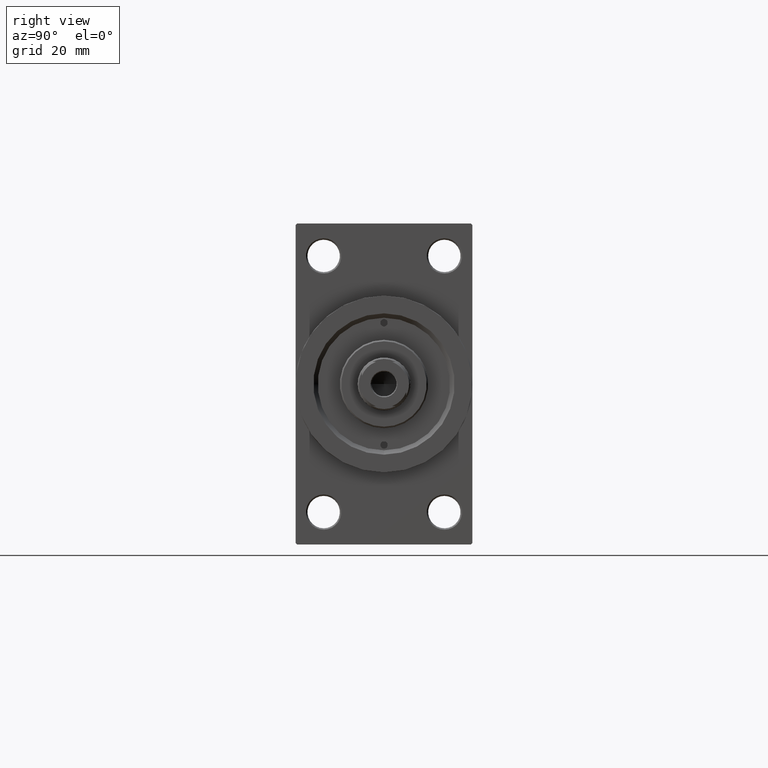
[diagram: clean part render]
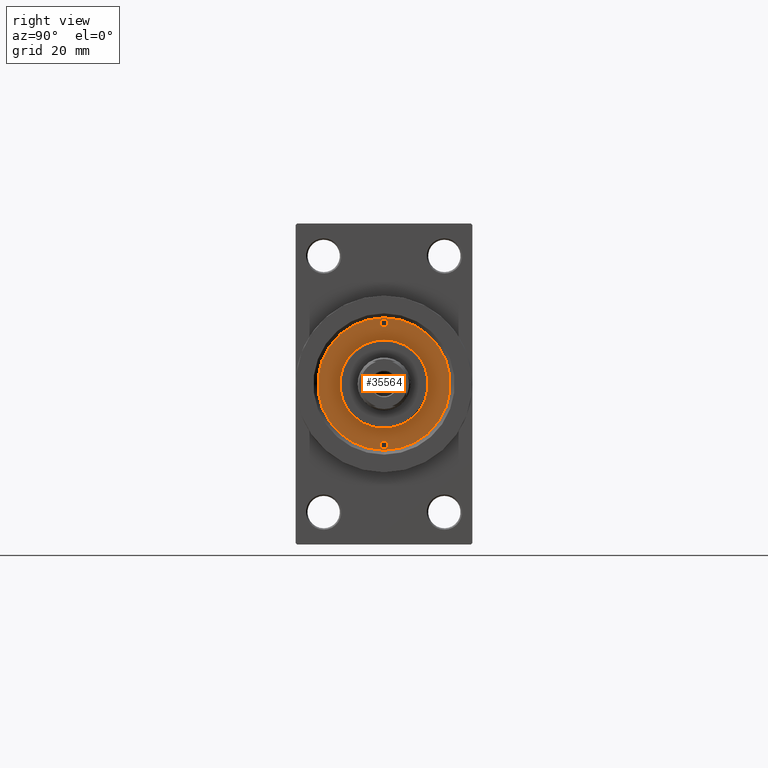
[diagram: same view with one face highlighted and labeled with its STEP entity id]
A machine part, right view. The second image highlights one B-rep face of the part: STEP entity #35564.
In plain terms, the highlighted planar face has unit normal (1, -0, -0).
Its self-contained STEP definition (entity closure, byte-faithful):
#2236 = VERTEX_POINT ( 'NONE', #22569 ) ;
#2845 = DIRECTION ( 'NONE',  ( 1.000000000000000000, 0.000000000000000000, -0.000000000000000000 ) ) ;
#2995 = CARTESIAN_POINT ( 'NONE',  ( -15.00000000000000000, 0.000000000000000000, 43.25999999999999801 ) ) ;
#3075 = FACE_BOUND ( 'NONE', #30760, .T. ) ;
#3416 = DIRECTION ( 'NONE',  ( -0.000000000000000000, -0.000000000000000000, 1.000000000000000000 ) ) ;
#3580 = AXIS2_PLACEMENT_3D ( 'NONE', #26160, #3416, #18030 ) ;
#4731 = DIRECTION ( 'NONE',  ( 1.000000000000000000, 0.000000000000000000, 0.000000000000000000 ) ) ;
#5623 = DIRECTION ( 'NONE',  ( 1.000000000000000000, 0.000000000000000000, 0.000000000000000000 ) ) ;
#5727 = CARTESIAN_POINT ( 'NONE',  ( 20.75000000000000000, 0.000000000000000000, 43.25999999999999801 ) ) ;
#6507 = VERTEX_POINT ( 'NONE', #19788 ) ;
#6894 = FACE_BOUND ( 'NONE', #32508, .T. ) ;
#8718 = CARTESIAN_POINT ( 'NONE',  ( -20.75000000000000000, 0.000000000000000000, 43.25999999999999801 ) ) ;
#9335 = AXIS2_PLACEMENT_3D ( 'NONE', #32788, #40249, #2845 ) ;
#9452 = VERTEX_POINT ( 'NONE', #19648 ) ;
#10704 = CARTESIAN_POINT ( 'NONE',  ( -20.75000000000000000, 0.000000000000000000, 43.25999999999999801 ) ) ;
#11320 = AXIS2_PLACEMENT_3D ( 'NONE', #10704, #28017, #25333 ) ;
#11505 = EDGE_CURVE ( 'NONE', #20924, #2236, #14223, .T. ) ;
#12370 = CIRCLE ( 'NONE', #39238, 22.50000000000000355 ) ;
#12980 = EDGE_CURVE ( 'NONE', #36946, #22057, #15823, .T. ) ;
#13095 = EDGE_CURVE ( 'NONE', #22057, #36946, #14283, .T. ) ;
#14223 = CIRCLE ( 'NONE', #41056, 1.249999999999997558 ) ;
#14283 = CIRCLE ( 'NONE', #3580, 1.249999999999997558 ) ;
#15106 = CARTESIAN_POINT ( 'NONE',  ( 22.00000000000000000, 0.000000000000000000, 43.25999999999999801 ) ) ;
#15552 = CARTESIAN_POINT ( 'NONE',  ( -19.50000000000000355, 0.000000000000000000, 43.25999999999999801 ) ) ;
#15821 = VERTEX_POINT ( 'NONE', #25052 ) ;
#15823 = CIRCLE ( 'NONE', #42684, 1.249999999999997558 ) ;
#15899 = EDGE_CURVE ( 'NONE', #15821, #21932, #34330, .T. ) ;
#16023 = DIRECTION ( 'NONE',  ( -0.000000000000000000, -0.000000000000000000, 1.000000000000000000 ) ) ;
#18030 = DIRECTION ( 'NONE',  ( 1.000000000000000000, 0.000000000000000000, 0.000000000000000000 ) ) ;
#18671 = AXIS2_PLACEMENT_3D ( 'NONE', #44347, #37617, #4731 ) ;
#19648 = CARTESIAN_POINT ( 'NONE',  ( 22.50000000000000355, 2.755455298081545172E-15, 43.25999999999999801 ) ) ;
#19788 = CARTESIAN_POINT ( 'NONE',  ( -22.50000000000000355, 0.000000000000000000, 43.25999999999999801 ) ) ;
#19849 = CARTESIAN_POINT ( 'NONE',  ( 0.000000000000000000, 0.000000000000000000, 43.25999999999999801 ) ) ;
#20163 = EDGE_CURVE ( 'NONE', #2236, #20924, #45081, .T. ) ;
#20523 = AXIS2_PLACEMENT_3D ( 'NONE', #29597, #29127, #36115 ) ;
#20924 = VERTEX_POINT ( 'NONE', #15552 ) ;
#21516 = PLANE ( 'NONE',  #9335 ) ;
#21816 = ORIENTED_EDGE ( 'NONE', *, *, #31976, .T. ) ;
#21932 = VERTEX_POINT ( 'NONE', #2995 ) ;
#22057 = VERTEX_POINT ( 'NONE', #15106 ) ;
#22569 = CARTESIAN_POINT ( 'NONE',  ( -22.00000000000000000, 1.530808498934188612E-16, 43.25999999999999801 ) ) ;
#25052 = CARTESIAN_POINT ( 'NONE',  ( 15.00000000000000000, 1.836970198721029589E-15, 43.25999999999999801 ) ) ;
#25117 = FACE_OUTER_BOUND ( 'NONE', #46287, .T. ) ;
#25333 = DIRECTION ( 'NONE',  ( 1.000000000000000000, 0.000000000000000000, 0.000000000000000000 ) ) ;
#25535 = ORIENTED_EDGE ( 'NONE', *, *, #13095, .F. ) ;
#25766 = ORIENTED_EDGE ( 'NONE', *, *, #12980, .F. ) ;
#25833 = ORIENTED_EDGE ( 'NONE', *, *, #11505, .F. ) ;
#26160 = CARTESIAN_POINT ( 'NONE',  ( 20.75000000000000000, 0.000000000000000000, 43.25999999999999801 ) ) ;
#27056 = DIRECTION ( 'NONE',  ( 1.000000000000000000, 0.000000000000000000, 0.000000000000000000 ) ) ;
#27097 = CIRCLE ( 'NONE', #18671, 22.50000000000000355 ) ;
#28017 = DIRECTION ( 'NONE',  ( -0.000000000000000000, -0.000000000000000000, 1.000000000000000000 ) ) ;
#28476 = ORIENTED_EDGE ( 'NONE', *, *, #15899, .F. ) ;
#29127 = DIRECTION ( 'NONE',  ( 0.000000000000000000, 0.000000000000000000, 1.000000000000000000 ) ) ;
#29366 = AXIS2_PLACEMENT_3D ( 'NONE', #37611, #33997, #34236 ) ;
#29597 = CARTESIAN_POINT ( 'NONE',  ( 0.000000000000000000, 0.000000000000000000, 43.25999999999999801 ) ) ;
#30760 = EDGE_LOOP ( 'NONE', ( #35222, #28476 ) ) ;
#31976 = EDGE_CURVE ( 'NONE', #6507, #9452, #12370, .T. ) ;
#32508 = EDGE_LOOP ( 'NONE', ( #25535, #25766 ) ) ;
#32788 = CARTESIAN_POINT ( 'NONE',  ( 0.000000000000000000, 0.000000000000000000, 43.25999999999999801 ) ) ;
#33544 = DIRECTION ( 'NONE',  ( 1.000000000000000000, 0.000000000000000000, 0.000000000000000000 ) ) ;
#33930 = EDGE_LOOP ( 'NONE', ( #25833, #43376 ) ) ;
#33997 = DIRECTION ( 'NONE',  ( 0.000000000000000000, 0.000000000000000000, 1.000000000000000000 ) ) ;
#34236 = DIRECTION ( 'NONE',  ( 1.000000000000000000, 0.000000000000000000, 0.000000000000000000 ) ) ;
#34330 = CIRCLE ( 'NONE', #20523, 15.00000000000000000 ) ;
#34408 = DIRECTION ( 'NONE',  ( -0.000000000000000000, -0.000000000000000000, 1.000000000000000000 ) ) ;
#35222 = ORIENTED_EDGE ( 'NONE', *, *, #39225, .F. ) ;
#35564 = ADVANCED_FACE ( 'NONE', ( #39322, #6894, #3075, #25117 ), #21516, .T. ) ;
#36115 = DIRECTION ( 'NONE',  ( 1.000000000000000000, 0.000000000000000000, 0.000000000000000000 ) ) ;
#36946 = VERTEX_POINT ( 'NONE', #40225 ) ;
#37611 = CARTESIAN_POINT ( 'NONE',  ( 0.000000000000000000, 0.000000000000000000, 43.25999999999999801 ) ) ;
#37617 = DIRECTION ( 'NONE',  ( 0.000000000000000000, 0.000000000000000000, 1.000000000000000000 ) ) ;
#39225 = EDGE_CURVE ( 'NONE', #21932, #15821, #42423, .T. ) ;
#39238 = AXIS2_PLACEMENT_3D ( 'NONE', #19849, #41707, #33544 ) ;
#39322 = FACE_BOUND ( 'NONE', #33930, .T. ) ;
#40090 = EDGE_CURVE ( 'NONE', #9452, #6507, #27097, .T. ) ;
#40225 = CARTESIAN_POINT ( 'NONE',  ( 19.50000000000000355, 1.530808498934188612E-16, 43.25999999999999801 ) ) ;
#40249 = DIRECTION ( 'NONE',  ( 0.000000000000000000, 0.000000000000000000, 1.000000000000000000 ) ) ;
#41056 = AXIS2_PLACEMENT_3D ( 'NONE', #8718, #34408, #5623 ) ;
#41707 = DIRECTION ( 'NONE',  ( 0.000000000000000000, 0.000000000000000000, 1.000000000000000000 ) ) ;
#42423 = CIRCLE ( 'NONE', #29366, 15.00000000000000000 ) ;
#42684 = AXIS2_PLACEMENT_3D ( 'NONE', #5727, #16023, #27056 ) ;
#43376 = ORIENTED_EDGE ( 'NONE', *, *, #20163, .F. ) ;
#44347 = CARTESIAN_POINT ( 'NONE',  ( 0.000000000000000000, 0.000000000000000000, 43.25999999999999801 ) ) ;
#45081 = CIRCLE ( 'NONE', #11320, 1.249999999999997558 ) ;
#46287 = EDGE_LOOP ( 'NONE', ( #21816, #46925 ) ) ;
#46925 = ORIENTED_EDGE ( 'NONE', *, *, #40090, .T. ) ;